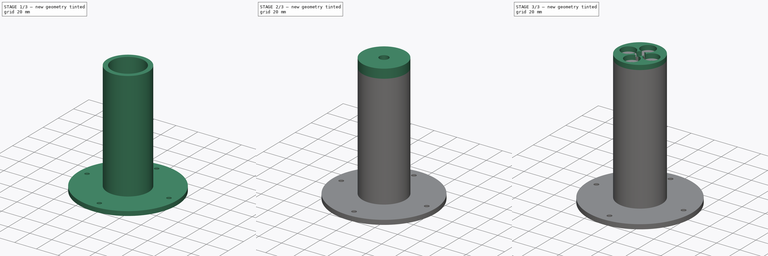
[diagram: build sequence overview — one tinted view per stage of 3, left to right]
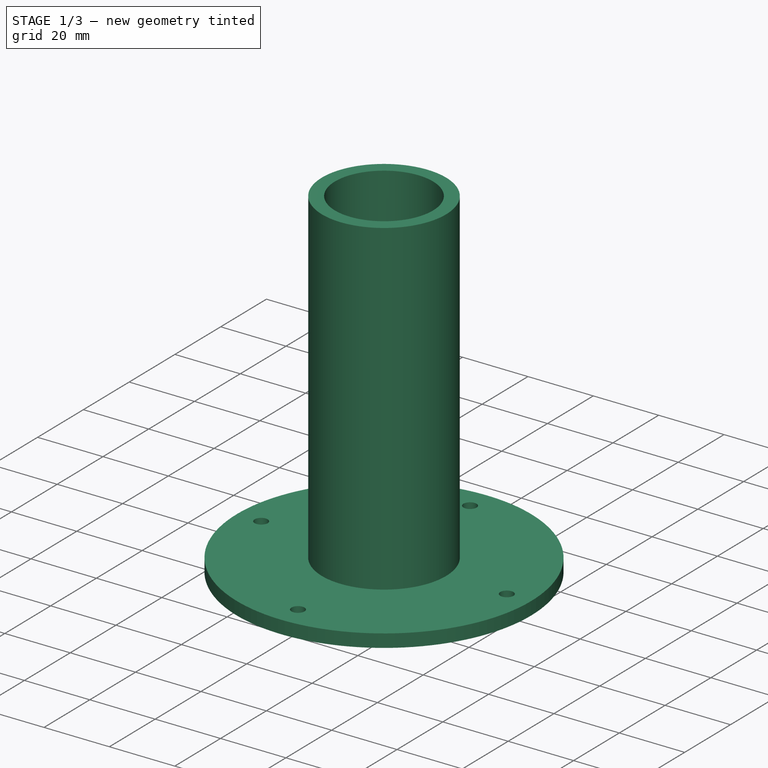
[diagram: stage 1 of 3 — iso view after this stage's code; geometry added in this stage tinted green]
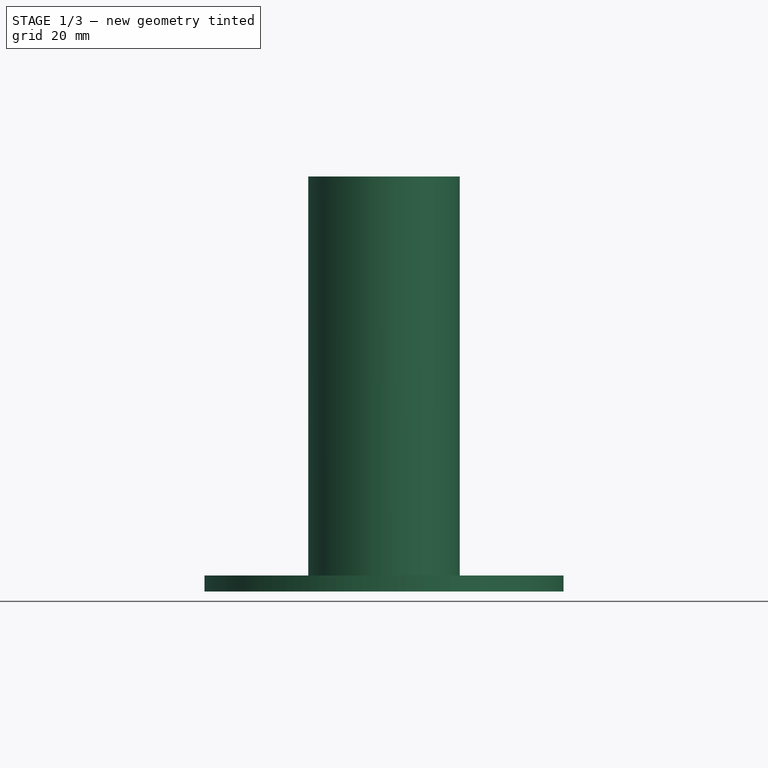
[diagram: stage 1 of 3 — front view after this stage's code; geometry added in this stage tinted green]
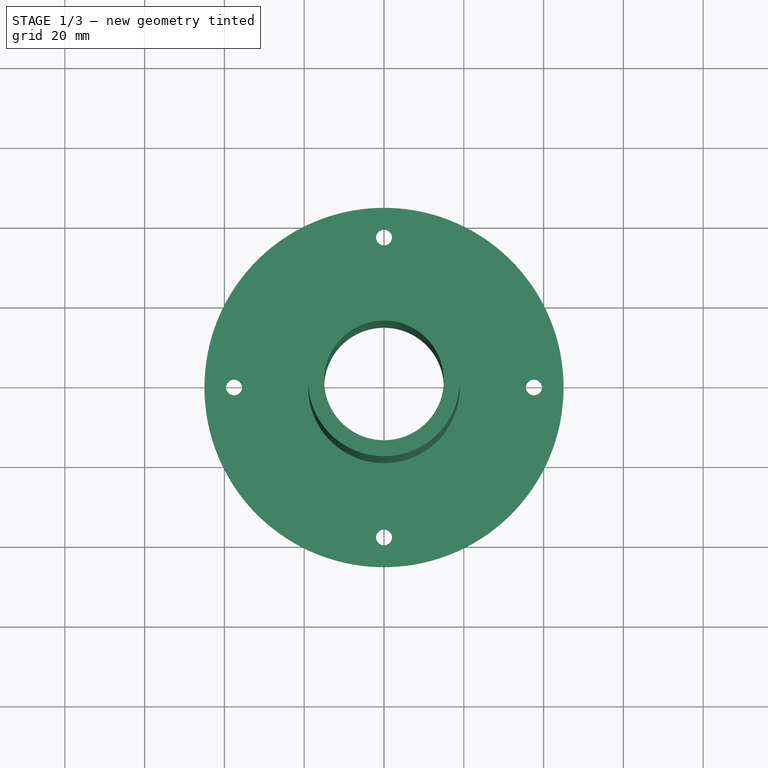
[diagram: stage 1 of 3 — top view after this stage's code; geometry added in this stage tinted green]
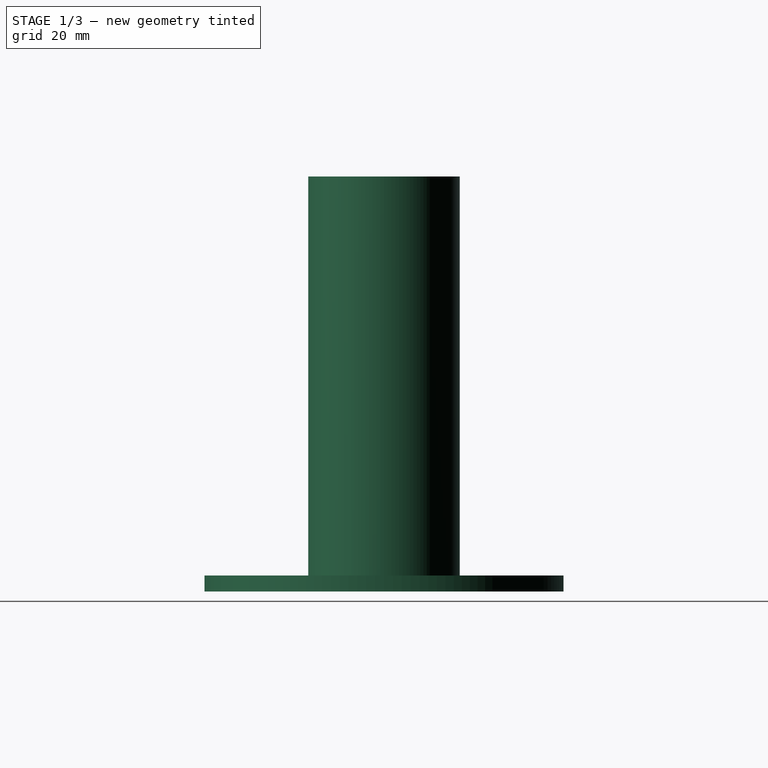
[diagram: stage 1 of 3 — right view after this stage's code; geometry added in this stage tinted green]
FCSTD DOCUMENT  (FreeCAD 0.19R24276 (Git))
Label: opora_for_fork_v1_add_h5mm_Add_15mm_Add_54_temp1
License: All rights reserved
LicenseURL: http://en.wikipedia.org/wiki/All_rights_reserved
objects: Sketcher::SketchObject×5, PartDesign::Pad×4, PartDesign::Pocket×1, PartDesign::Body×1
note: 16 computed .brp shape members not serialized (recipe doc carries the construction recipe); baked Part::Feature solids carry a one-line shape summary decoded from their .brp

FEATURE [Sketcher::SketchObject] Sketch  label="Sketch_d90_d40"
  FullyConstrained = true
  MapMode = 5
  Support = -> [XY_Plane]
  sketch-geometry (11):
    g0: Circle CenterX=0 CenterY=0 CenterZ=0 NormalX=0 NormalY=0 NormalZ=1 AngleXU=0 Radius=15
    g1: Circle CenterX=0 CenterY=0 CenterZ=0 NormalX=0 NormalY=0 NormalZ=1 AngleXU=0 Radius=45
    g2: Circle CenterX=0 CenterY=0 CenterZ=0 NormalX=0 NormalY=0 NormalZ=1 AngleXU=0 Radius=37.58
    g3: LineSegment StartX=0 StartY=0 StartZ=0 EndX=0 EndY=37.58 EndZ=0
    g4: LineSegment StartX=0 StartY=0 StartZ=0 EndX=-37.58 EndY=0 EndZ=0
    g5: LineSegment StartX=0 StartY=0 StartZ=0 EndX=0 EndY=-37.58 EndZ=0
    g6: Circle CenterX=0 CenterY=37.58 CenterZ=0 NormalX=0 NormalY=0 NormalZ=1 AngleXU=0 Radius=2
    g7: Circle CenterX=0 CenterY=-37.58 CenterZ=0 NormalX=0 NormalY=0 NormalZ=1 AngleXU=0 Radius=2
    g8: LineSegment StartX=0 StartY=0 StartZ=0 EndX=37.58 EndY=0 EndZ=0
    g9: Circle CenterX=37.58 CenterY=0 CenterZ=0 NormalX=0 NormalY=0 NormalZ=1 AngleXU=0 Radius=2
    g10: Circle CenterX=-37.58 CenterY=0 CenterZ=0 NormalX=0 NormalY=0 NormalZ=1 AngleXU=0 Radius=2
  constraints (26):
    c: Coincident(g0,g-1)
    c: Coincident(g1,g0)
    c: Diameter(g1) = 90
    c: Diameter(g0) = 30
    c: Coincident(g2,g0)
    c: Diameter(g2) = 75.16
    c: Coincident(g3,g0)
    c: Coincident(g4,g0)
    c: Vertical(g3)
    c: Horizontal(g4)
    c: Coincident(g5,g0)
    c: Vertical(g5)
    c: PointOnObject(g3,g2)
    c: PointOnObject(g4,g2)
    c: PointOnObject(g5,g2)
    c: Coincident(g6,g3)
    c: Coincident(g7,g5)
    c: Coincident(g8,g0)
    c: PointOnObject(g8,g2)
    c: Horizontal(g8)
    c: Coincident(g9,g8)
    c: Coincident(g10,g4)
    c: Diameter(g6) = 4
    c: Equal(g6,g10)
    c: Equal(g6,g7)
    c: Equal(g6,g9)
FEATURE [PartDesign::Pad] Pad  label="Pad_h4"
  Direction = (1,1,1)
  Length = 4
  Length2 = 100
  Profile = -> Sketch
  Type = 0
FEATURE [Sketcher::SketchObject] Sketch001  label="Sketch001_d30_d38"
  FullyConstrained = true
  MapMode = 5
  Placement = pos=(0,0,4) rot=(0,0,1;0rad)
  Support = -> [Pad]
  sketch-geometry (2):
    g0: Circle CenterX=0 CenterY=0 CenterZ=0 NormalX=0 NormalY=0 NormalZ=1 AngleXU=0 Radius=15
    g1: Circle CenterX=0 CenterY=0 CenterZ=0 NormalX=0 NormalY=0 NormalZ=1 AngleXU=0 Radius=19
  constraints (4):
    c: Coincident(g0,g-1)
    c: Coincident(g1,g0)
    c: Diameter(g1) = 38
    c: Diameter(g0) = 30
FEATURE [PartDesign::Pad] Pad001  label="Pad001_46+54_temp"
  BaseFeature = -> Pad
  Direction = (1,1,1)
  Length = 100
  Length2 = 100
  Profile = -> Sketch001
  Type = 0
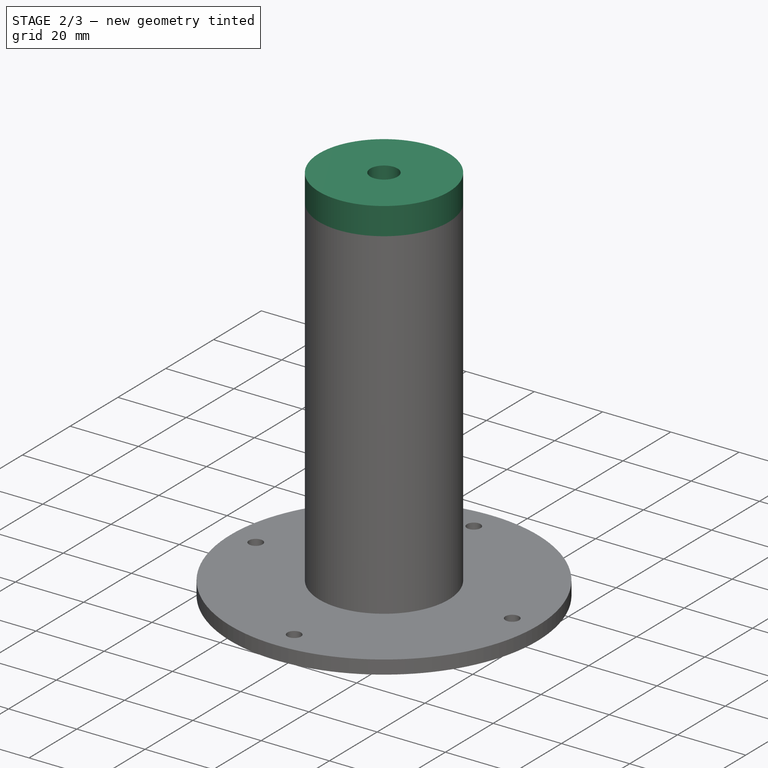
[diagram: stage 2 of 3 — iso view after this stage's code; geometry added in this stage tinted green]
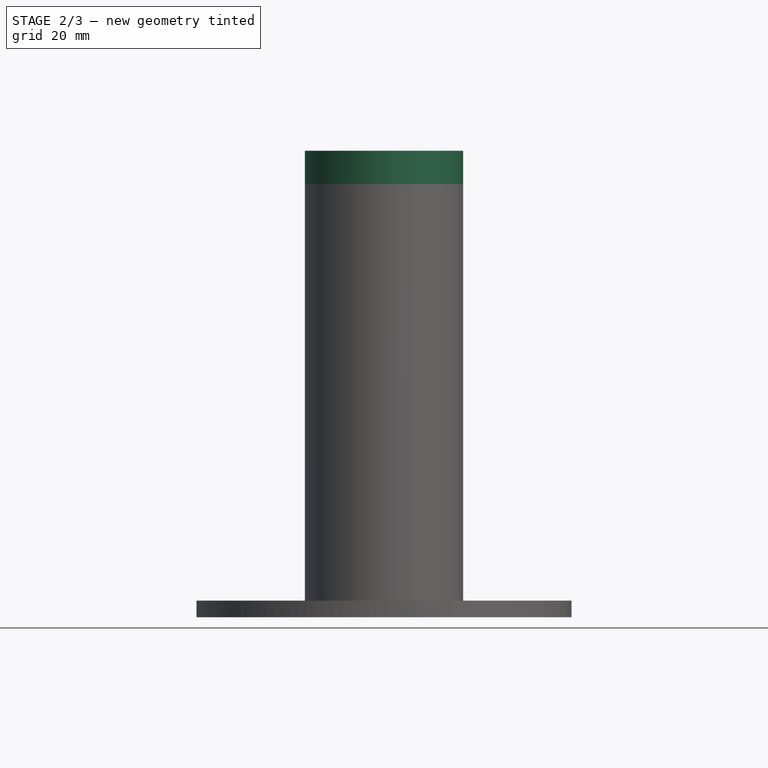
[diagram: stage 2 of 3 — front view after this stage's code; geometry added in this stage tinted green]
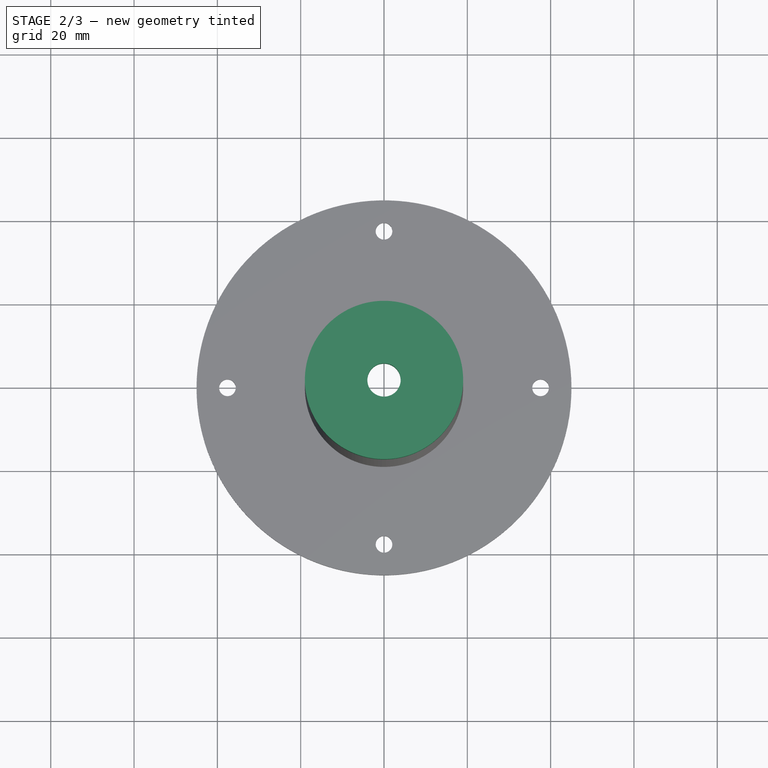
[diagram: stage 2 of 3 — top view after this stage's code; geometry added in this stage tinted green]
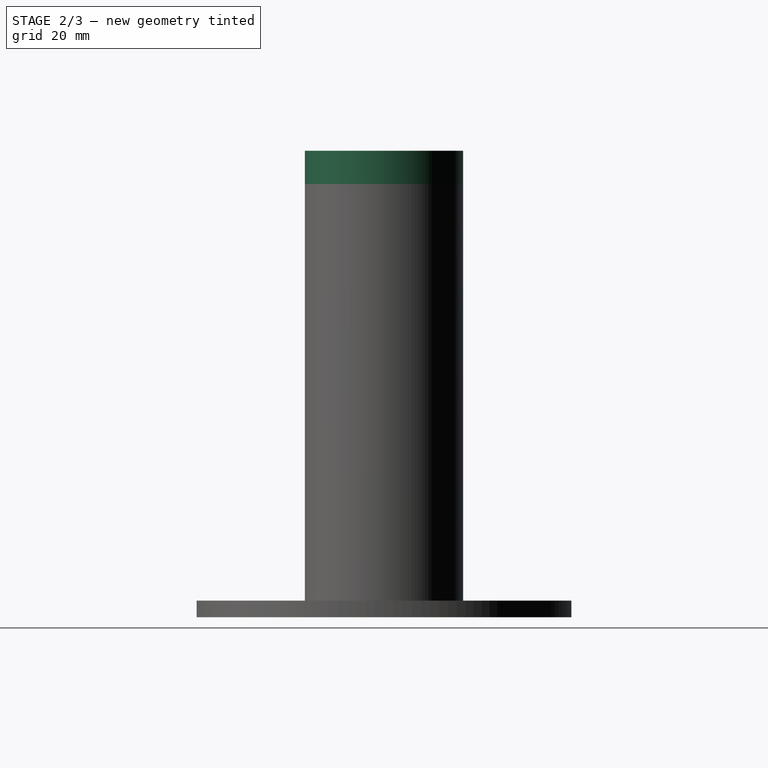
[diagram: stage 2 of 3 — right view after this stage's code; geometry added in this stage tinted green]
FEATURE [Sketcher::SketchObject] Sketch002  label="Sketch002_d8_d38"
  FullyConstrained = true
  MapMode = 5
  Placement = pos=(0,0,104) rot=(0,0,1;0rad)
  Support = -> [Pad001]
  sketch-geometry (4):
    g0: Circle CenterX=0 CenterY=0 CenterZ=0 NormalX=0 NormalY=0 NormalZ=1 AngleXU=0 Radius=19
    g1: Circle CenterX=0 CenterY=0 CenterZ=0 NormalX=0 NormalY=0 NormalZ=1 AngleXU=0 Radius=1e-16
    g2: Circle CenterX=0 CenterY=0 CenterZ=0 NormalX=0 NormalY=0 NormalZ=1 AngleXU=0 Radius=0
    g3: Circle CenterX=0 CenterY=0 CenterZ=0 NormalX=0 NormalY=0 NormalZ=1 AngleXU=0 Radius=4
  constraints (8):
    c: Coincident(g0,g-1)
    c: Diameter(g0) = 38
    c: Coincident(g1,g0)
    c: Tangent(g1,g-2)
    c: Coincident(g2,g0)
    c: Tangent(g2,g-2)
    c: Coincident(g3,g0)
    c: Diameter(g3) = 8
FEATURE [PartDesign::Pad] Pad002  label="Pad002_h4"
  BaseFeature = -> Pad001
  Direction = (1,1,1)
  Length = 8
  Length2 = 100
  Profile = -> Sketch002
  Type = 0
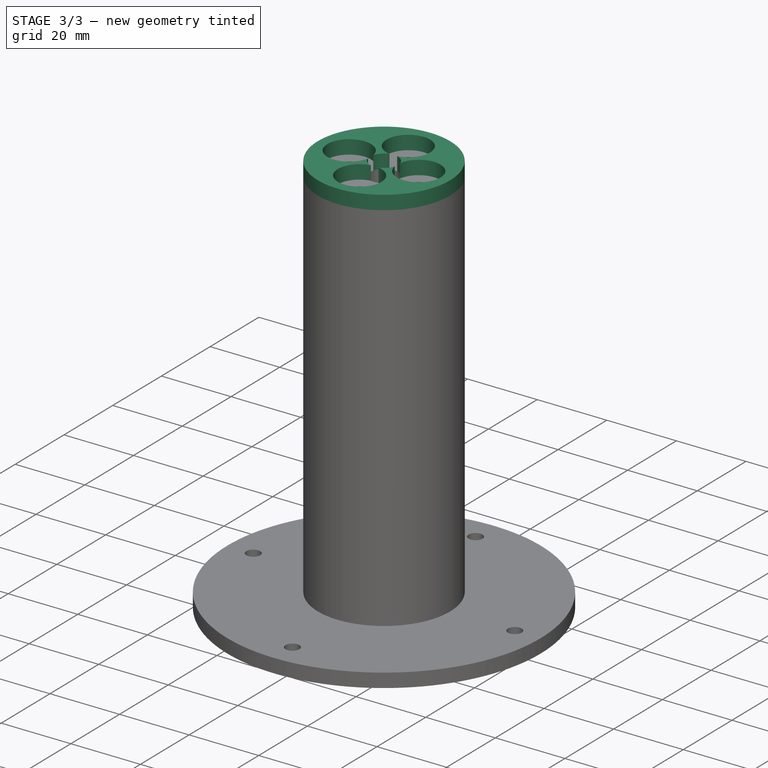
[diagram: stage 3 of 3 — iso view after this stage's code; geometry added in this stage tinted green]
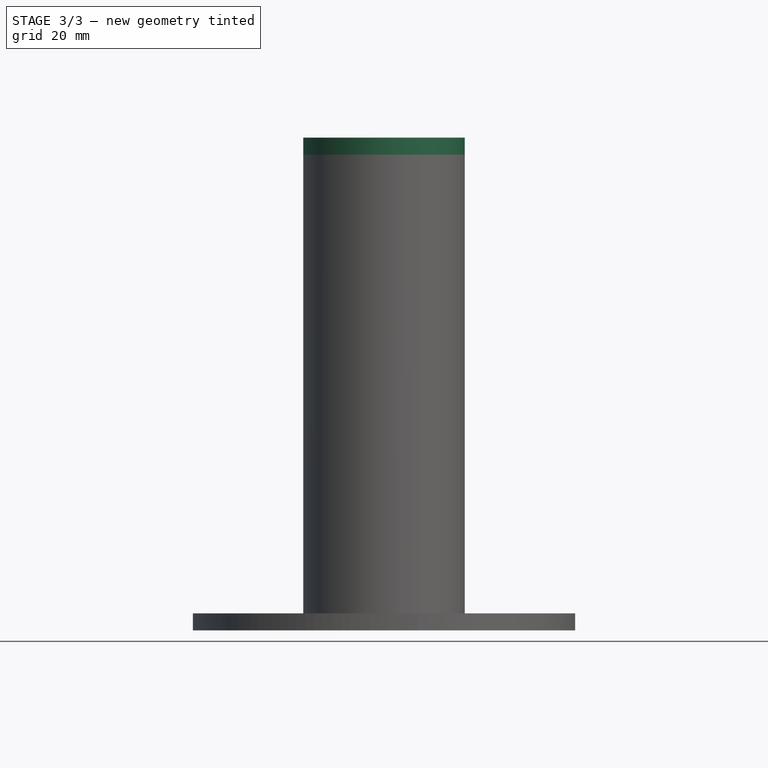
[diagram: stage 3 of 3 — front view after this stage's code; geometry added in this stage tinted green]
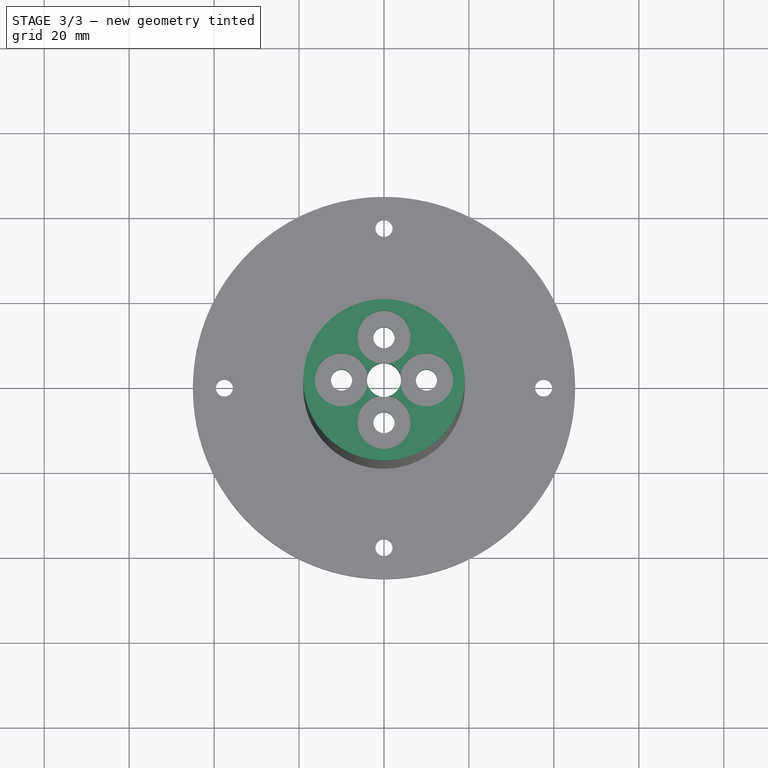
[diagram: stage 3 of 3 — top view after this stage's code; geometry added in this stage tinted green]
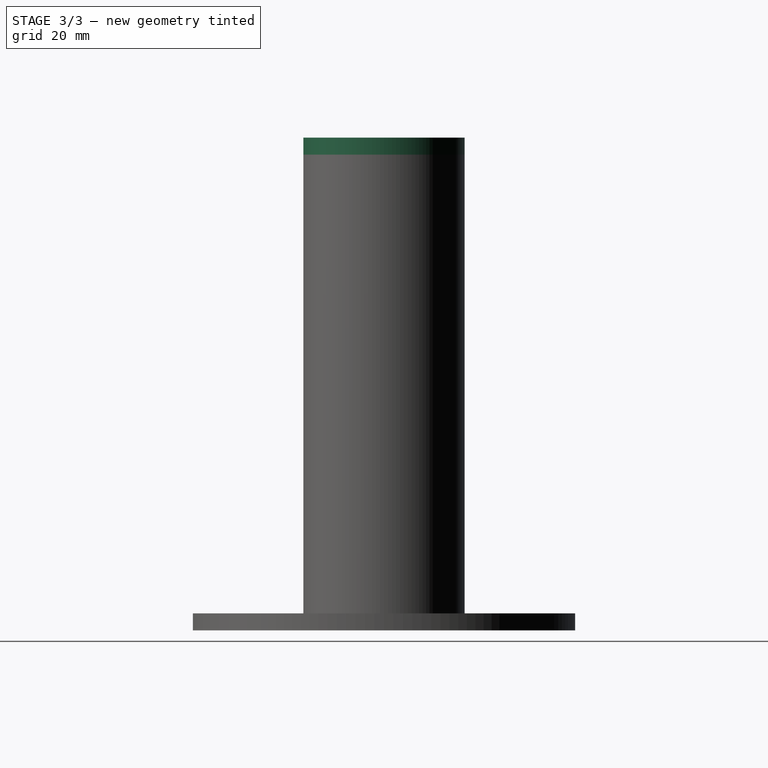
[diagram: stage 3 of 3 — right view after this stage's code; geometry added in this stage tinted green]
FEATURE [Sketcher::SketchObject] Sketch003  label="Sketch003_4otv_d4_R10"
  FullyConstrained = true
  MapMode = 5
  Placement = pos=(0,0,112) rot=(0,0,1;0rad)
  Support = -> [Pad002]
  sketch-geometry (10):
    g0: LineSegment StartX=0 StartY=10 StartZ=0 EndX=-10 EndY=0 EndZ=0
    g1: LineSegment StartX=-10 StartY=0 StartZ=0 EndX=0 EndY=-10 EndZ=0
    g2: LineSegment StartX=0 StartY=-10 StartZ=0 EndX=10 EndY=0 EndZ=0
    g3: LineSegment StartX=10 StartY=0 StartZ=0 EndX=0 EndY=10 EndZ=0
    g4: Circle CenterX=0 CenterY=0 CenterZ=0 NormalX=0 NormalY=0 NormalZ=1 AngleXU=0 Radius=10
    g5: Circle CenterX=0 CenterY=0 CenterZ=0 NormalX=0 NormalY=0 NormalZ=1 AngleXU=0 Radius=15
    g6: Circle CenterX=0 CenterY=10 CenterZ=0 NormalX=0 NormalY=0 NormalZ=1 AngleXU=0 Radius=2.5
    g7: Circle CenterX=10 CenterY=0 CenterZ=0 NormalX=0 NormalY=0 NormalZ=1 AngleXU=0 Radius=2.5
    g8: Circle CenterX=0 CenterY=-10 CenterZ=0 NormalX=0 NormalY=0 NormalZ=1 AngleXU=0 Radius=2.5
    g9: Circle CenterX=-10 CenterY=0 CenterZ=0 NormalX=0 NormalY=0 NormalZ=1 AngleXU=0 Radius=2.5
  constraints (24):
    c: Coincident(g0,g1)
    c: Coincident(g1,g2)
    c: Coincident(g2,g3)
    c: Coincident(g3,g0)
    c: Equal(g0,g1)
    c: Equal(g0,g2)
    c: Equal(g0,g3)
    c: PointOnObject(g0,g4)
    c: PointOnObject(g1,g4)
    c: PointOnObject(g2,g4)
    c: PointOnObject(g3,g4)
    c: Coincident(g4,g-1)
    c: PointOnObject(g3,g-2)
    c: Coincident(g5,g-1)
    c: Diameter(g5) = 30
    c: Coincident(g6,g0)
    c: Diameter(g6) = 5
    c: Diameter(g4) = 20
    c: Coincident(g7,g2)
    c: Coincident(g8,g1)
    c: Coincident(g9,g0)
    c: Equal(g8,g7)
    c: Equal(g7,g9)
    c: Equal(g9,g6)
FEATURE [PartDesign::Pocket] Pocket  label="Pocket_4otv"
  BaseFeature = -> Pad002
  Length = 5
  Length2 = 100
  Profile = -> Sketch003
  Type = 1
FEATURE [Sketcher::SketchObject] Sketch004
  FullyConstrained = true
  MapMode = 5
  Placement = pos=(0,0,112) rot=(0,0,1;0rad)
  Support = -> [Pocket]
  sketch-geometry (14):
    g0: Circle CenterX=0 CenterY=0 CenterZ=0 NormalX=0 NormalY=0 NormalZ=1 AngleXU=0 Radius=19
    g1: ArcOfCircle CenterX=0 CenterY=0 CenterZ=0 NormalX=0 NormalY=0 NormalZ=1 AngleXU=0 Radius=4 StartAngle=0.27759 EndAngle=1.29321
    g2: LineSegment StartX=0 StartY=10 StartZ=0 EndX=-10 EndY=-5.92788e-11 EndZ=0
    g3: LineSegment StartX=-10 StartY=-5.92788e-11 StartZ=0 EndX=7.9119e-12 EndY=-10 EndZ=0
    g4: LineSegment StartX=7.9119e-12 StartY=-10 StartZ=0 EndX=10 EndY=6.71889e-11 EndZ=0
    g5: LineSegment StartX=10 StartY=6.71889e-11 StartZ=0 EndX=0 EndY=10 EndZ=0
    g6: Circle CenterX=0 CenterY=0 CenterZ=0 NormalX=0 NormalY=0 NormalZ=1 AngleXU=0 Radius=10
    g7: ArcOfCircle CenterX=0 CenterY=10 CenterZ=0 NormalX=0 NormalY=0 NormalZ=1 AngleXU=0 Radius=6.25 StartAngle=4.88869 EndAngle=10.8193
    g8: ArcOfCircle CenterX=-10 CenterY=-5.92788e-11 CenterZ=0 NormalX=0 NormalY=0 NormalZ=1 AngleXU=0 Radius=6.25 StartAngle=0.176296 EndAngle=6.10689
    g9: ArcOfCircle CenterX=7.9119e-12 CenterY=-10 CenterZ=0 NormalX=0 NormalY=0 NormalZ=1 AngleXU=0 Radius=6.25 StartAngle=1.74709 EndAngle=7.67769
    g10: ArcOfCircle CenterX=10 CenterY=6.71889e-11 CenterZ=0 NormalX=0 NormalY=0 NormalZ=1 AngleXU=0 Radius=6.25 StartAngle=3.31789 EndAngle=9.24848
    g11: ArcOfCircle CenterX=0 CenterY=0 CenterZ=0 NormalX=0 NormalY=0 NormalZ=1 AngleXU=0 Radius=4 StartAngle=1.84839 EndAngle=2.864
    g12: ArcOfCircle CenterX=0 CenterY=0 CenterZ=0 NormalX=0 NormalY=0 NormalZ=1 AngleXU=0 Radius=4 StartAngle=3.41918 EndAngle=4.4348
    g13: ArcOfCircle CenterX=0 CenterY=0 CenterZ=0 NormalX=0 NormalY=0 NormalZ=1 AngleXU=0 Radius=4 StartAngle=4.98998 EndAngle=6.0056
  constraints (40):
    c: Coincident(g0,g-1)
    c: Coincident(g1,g0)
    c: Diameter(g0) = 38
    c: Diameter(g1) = 8
    c: Coincident(g2,g3)
    c: Coincident(g3,g4)
    c: Coincident(g4,g5)
    c: Coincident(g5,g2)
    c: Equal(g2,g3)
    c: Equal(g2,g4)
    c: Equal(g2,g5)
    c: PointOnObject(g2,g6)
    c: PointOnObject(g3,g6)
    c: PointOnObject(g4,g6)
    c: PointOnObject(g5,g6)
    c: Coincident(g6,g0)
    c: PointOnObject(g5,g-2)
    c: Diameter(g6) = 20
    c: Coincident(g7,g2)
    c: Coincident(g8,g2)
    c: Coincident(g9,g3)
    c: Coincident(g10,g4)
    c: Diameter(g7) = 12.5
    c: Equal(g9,g8)
    c: Equal(g8,g10)
    c: Equal(g10,g7)
    c: Coincident(g10,g13)
    c: Coincident(g10,g1)
    c: Equal(g1,g11)
    c: Coincident(g1,g7)
    c: Coincident(g11,g7)
    c: Coincident(g1,g11)
    c: Equal(g11,g12)
    c: Coincident(g11,g8)
    c: Coincident(g12,g8)
    c: Coincident(g11,g12)
    c: Equal(g12,g13)
    c: Coincident(g12,g13)
    c: Coincident(g9,g12)
    c: Coincident(g9,g13)
FEATURE [PartDesign::Pad] Pad003
  BaseFeature = -> Pocket
  Direction = (1,1,1)
  Length = 4
  Length2 = 100
  Profile = -> Sketch004
  Type = 0
FEATURE [PartDesign::Body] Body
  Group = -> [Sketch,Pad,Sketch001,Pad001,Sketch002,Pad002,Sketch003,Pocket,Sketch004,Pad003]
  Origin = -> Origin
  Tip = -> Pad003
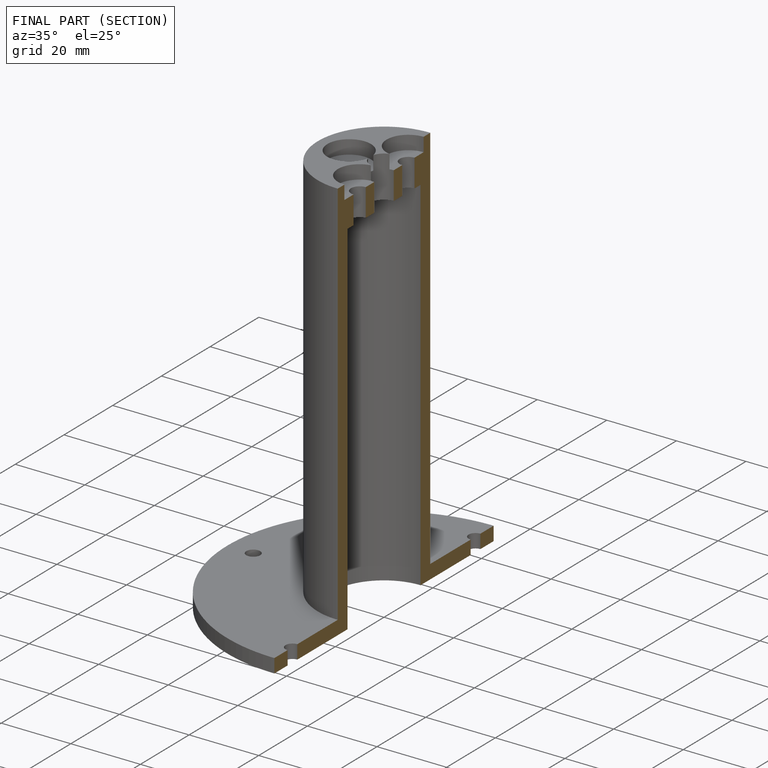
[diagram: finished part — half-section view (interior)]
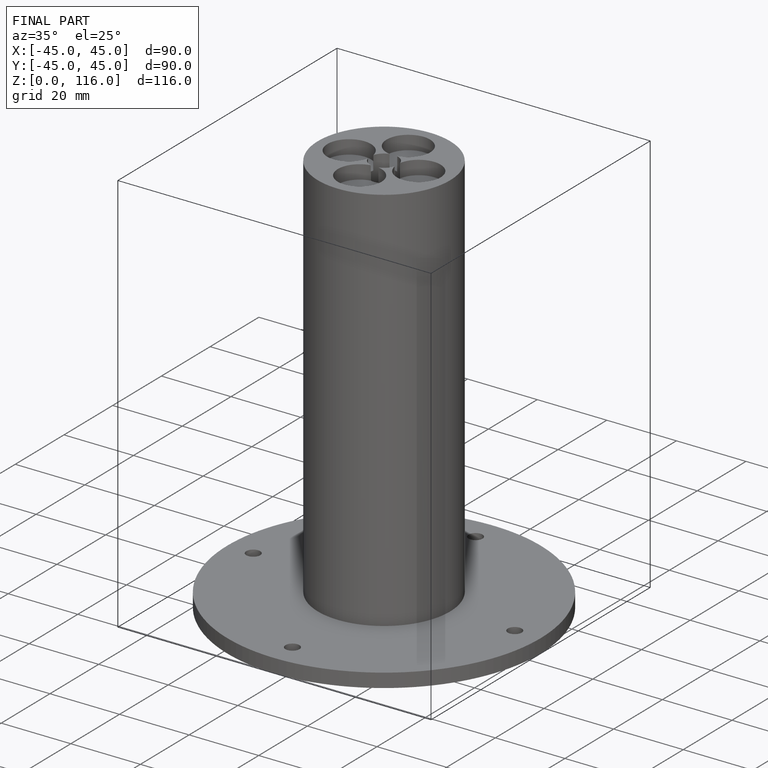
[diagram: finished part — iso view with bounding-box wireframe]
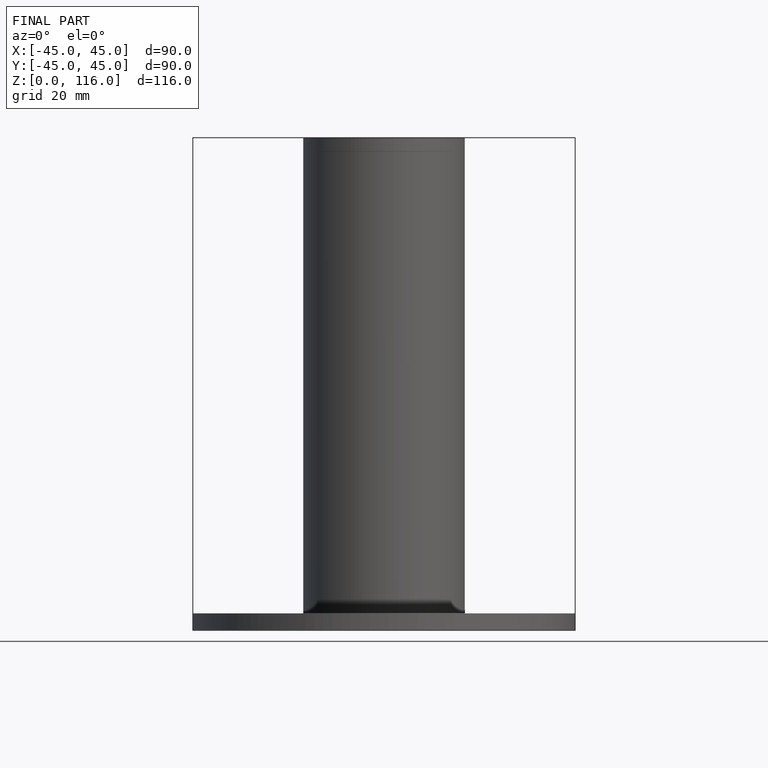
[diagram: finished part — front view with bounding-box wireframe]
